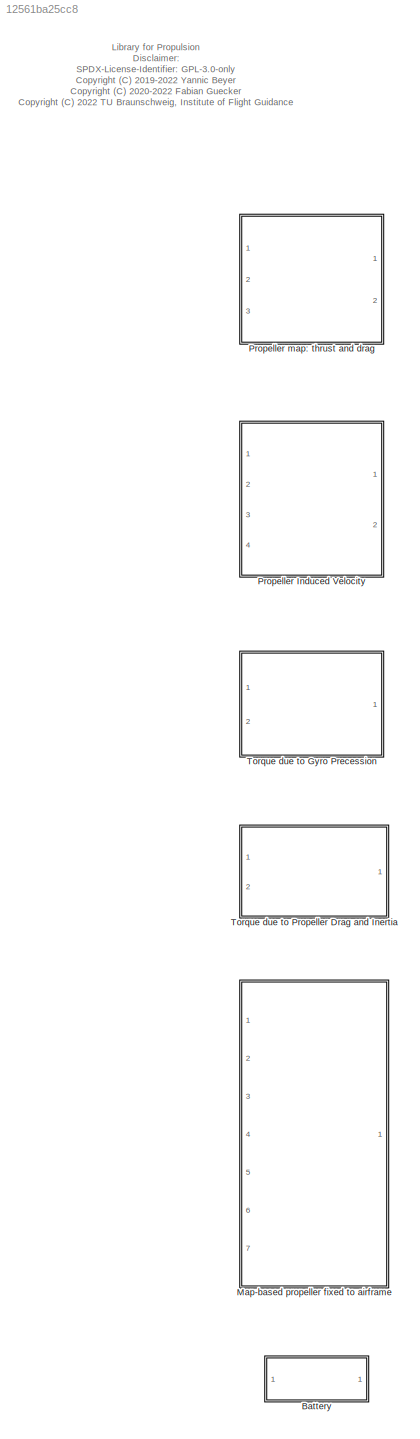
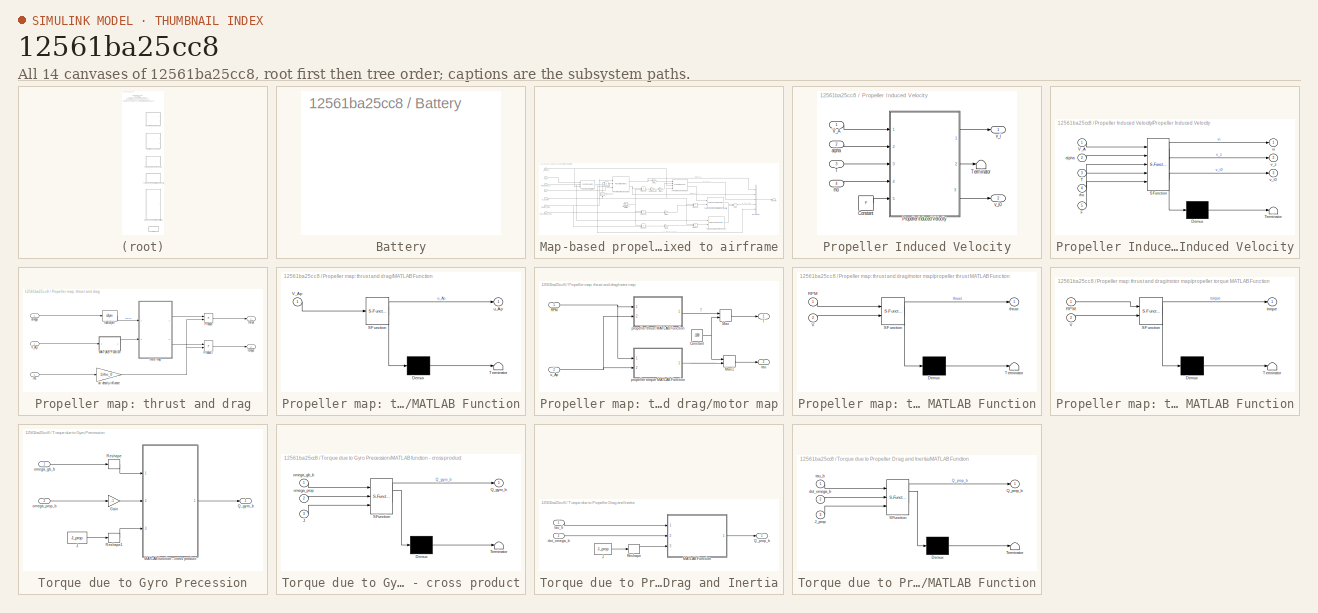
[diagram: thumbnail index - all 14 canvases of the model, root first then tree order]
MODEL slx_12561ba25cc8
KIND library
CONFIG AbsTol = auto
CONFIG EnableMultiTasking = off
CONFIG FixedStep = auto
CONFIG MaxStep = auto
CONFIG MinStep = auto
CONFIG RelTol = 1e-3
CONFIG SampleTimeConstraint = Unconstrained
CONFIG Solver = VariableStepAuto
CONFIG SolverName = VariableStepAuto
CONFIG StartTime = 0.0
CONFIG StopTime = 10.0
BLOCK [SubSystem] Battery
  OpenFcn = battery_lib
  Ports = []
  RequestExecContextInheritance = off
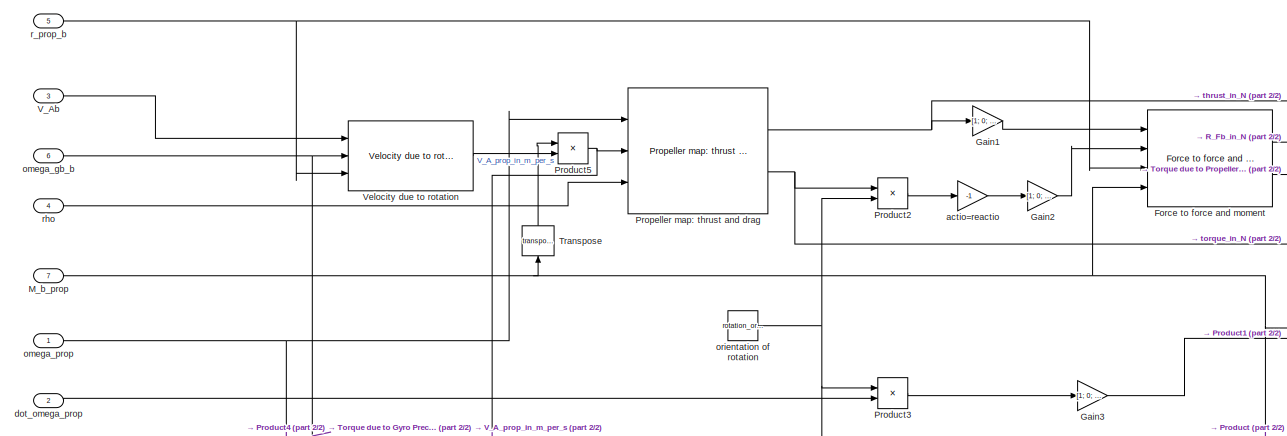
[diagram: Map-based propeller fixed to airframe - part 1/2, middle left region]
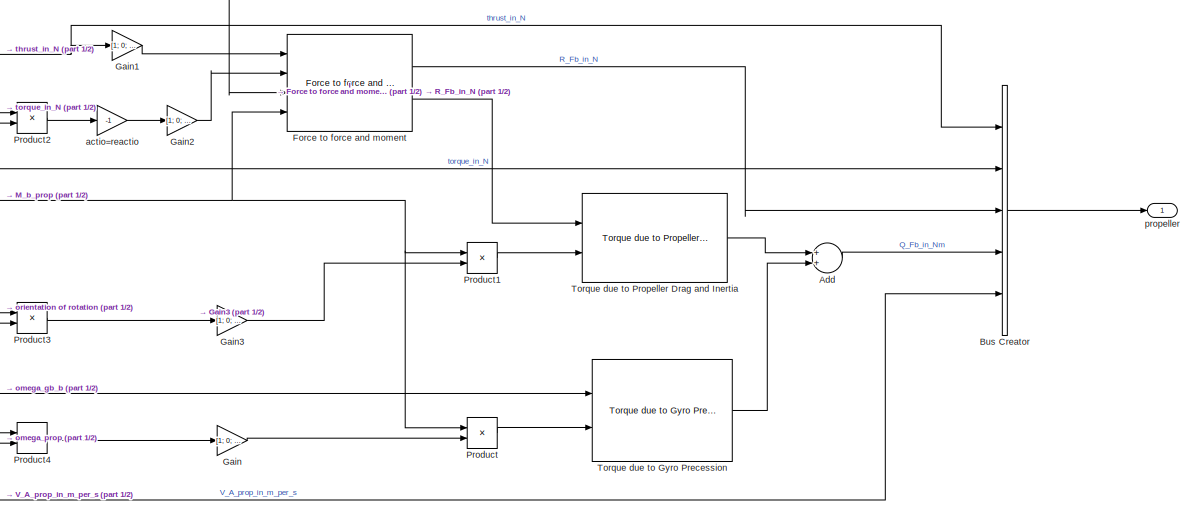
[diagram: Map-based propeller fixed to airframe - part 2/2, right side, full height]
BLOCK [SubSystem] Map-based propeller fixed to airframe
  Ports = [7, 1]
  RequestExecContextInheritance = off
BLOCK [Sum] Map-based propeller fixed to airframe/Add
  InputSameDT = off
  OutDataTypeStr = Inherit: Inherit via internal rule
  Ports = [2, 1]
  SaturateOnIntegerOverflow = off
BLOCK [BusCreator] Map-based propeller fixed to airframe/Bus Creator
  DisplayOption = bar
  InheritFromInputs = on
  Inputs = 5
  Ports = [5, 1]
BLOCK [Reference] Map-based propeller fixed to airframe/Force to force and moment  REF=axes_transformation_lib/Force to force and moment  (lib defined in slx_69e2413c78c0)
  Ports = [4, 2]
  SourceBlock = axes_transformation_lib/Force to force and moment
  SourceProductName = LADAC
  SourceType = SubSystem
BLOCK [Gain] Map-based propeller fixed to airframe/Gain
  Gain = [1; 0; 0]
  OutDataTypeStr = Inherit: Inherit via internal rule
  ParamDataTypeStr = Inherit: Inherit via internal rule
  SaturateOnIntegerOverflow = off
BLOCK [Gain] Map-based propeller fixed to airframe/Gain1
  Gain = [1; 0; 0]
  OutDataTypeStr = Inherit: Inherit via internal rule
  ParamDataTypeStr = Inherit: Inherit via internal rule
  SaturateOnIntegerOverflow = off
BLOCK [Gain] Map-based propeller fixed to airframe/Gain2
  Gain = [1; 0; 0]
  OutDataTypeStr = Inherit: Inherit via internal rule
  ParamDataTypeStr = Inherit: Inherit via internal rule
  SaturateOnIntegerOverflow = off
BLOCK [Gain] Map-based propeller fixed to airframe/Gain3
  Gain = [1; 0; 0]
  OutDataTypeStr = Inherit: Inherit via internal rule
  ParamDataTypeStr = Inherit: Inherit via internal rule
  SaturateOnIntegerOverflow = off
BLOCK [Inport] Map-based propeller fixed to airframe/M_b_prop
  IconDisplay = Port number
  Port = 7
BLOCK [Product] Map-based propeller fixed to airframe/Product
  InputSameDT = off
  Multiplication = Matrix(*)
  OutDataTypeStr = Inherit: Inherit via internal rule
  Ports = [2, 1]
  RndMeth = Floor
  SaturateOnIntegerOverflow = off
BLOCK [Product] Map-based propeller fixed to airframe/Product1
  InputSameDT = off
  Multiplication = Matrix(*)
  OutDataTypeStr = Inherit: Inherit via internal rule
  Ports = [2, 1]
  RndMeth = Floor
  SaturateOnIntegerOverflow = off
BLOCK [Product] Map-based propeller fixed to airframe/Product2
  InputSameDT = off
  OutDataTypeStr = Inherit: Inherit via internal rule
  Ports = [2, 1]
  RndMeth = Floor
  SaturateOnIntegerOverflow = off
BLOCK [Product] Map-based propeller fixed to airframe/Product3
  InputSameDT = off
  OutDataTypeStr = Inherit: Inherit via internal rule
  Ports = [2, 1]
  RndMeth = Floor
  SaturateOnIntegerOverflow = off
BLOCK [Product] Map-based propeller fixed to airframe/Product4
  InputSameDT = off
  OutDataTypeStr = Inherit: Inherit via internal rule
  Ports = [2, 1]
  RndMeth = Floor
  SaturateOnIntegerOverflow = off
BLOCK [Product] Map-based propeller fixed to airframe/Product5
  InputSameDT = off
  Multiplication = Matrix(*)
  OutDataTypeStr = Inherit: Inherit via internal rule
  Ports = [2, 1]
  RndMeth = Floor
  SaturateOnIntegerOverflow = off
BLOCK [Reference] Map-based propeller fixed to airframe/Propeller map: thrust and drag  REF=$bdroot/Propeller map: thrust and drag
  Ports = [3, 2]
  SourceBlock = $bdroot/Propeller map: thrust and drag
BLOCK [Reference] Map-based propeller fixed to airframe/Torque due to Gyro Precession  REF=$bdroot/Torque due to Gyro Precession
  Ports = [2, 1]
  SourceBlock = $bdroot/Torque due to Gyro Precession
BLOCK [Reference] Map-based propeller fixed to airframe/Torque due to Propeller Drag and Inertia  REF=$bdroot/Torque due to Propeller Drag and Inertia
  Ports = [2, 1]
  SourceBlock = $bdroot/Torque due to Propeller Drag and Inertia
BLOCK [Math] Map-based propeller fixed to airframe/Transpose
  Operator = transpose
  Ports = [1, 1]
BLOCK [Inport] Map-based propeller fixed to airframe/V_Ab
  IconDisplay = Port number
  Port = 3
BLOCK [Reference] Map-based propeller fixed to airframe/Velocity due to rotation  REF=axes_transformation_lib/Velocity due to rotation  (lib defined in slx_69e2413c78c0)
  Ports = [3, 1]
  SourceBlock = axes_transformation_lib/Velocity due to rotation
  SourceProductName = LADAC
  SourceType = SubSystem
BLOCK [Gain] Map-based propeller fixed to airframe/actio=reactio
  Gain = -1
  OutDataTypeStr = Inherit: Inherit via internal rule
  ParamDataTypeStr = Inherit: Inherit via internal rule
  SaturateOnIntegerOverflow = off
BLOCK [Inport] Map-based propeller fixed to airframe/dot_omega_prop
  IconDisplay = Port number
  Port = 2
BLOCK [Inport] Map-based propeller fixed to airframe/omega_gb_b
  IconDisplay = Port number
  Port = 6
BLOCK [Inport] Map-based propeller fixed to airframe/omega_prop
  IconDisplay = Port number
BLOCK [Constant] Map-based propeller fixed to airframe/orientation of rotation
  Value = rotation_orientation
BLOCK [Outport] Map-based propeller fixed to airframe/propeller
  IconDisplay = Port number
BLOCK [Inport] Map-based propeller fixed to airframe/r_prop_b
  IconDisplay = Port number
  Port = 5
BLOCK [Inport] Map-based propeller fixed to airframe/rho
  IconDisplay = Port number
  Port = 4
BLOCK [SubSystem] Propeller Induced Velocity
  Ports = [4, 2]
  RequestExecContextInheritance = off
BLOCK [Constant] Propeller Induced Velocity/Constant
  Value = F
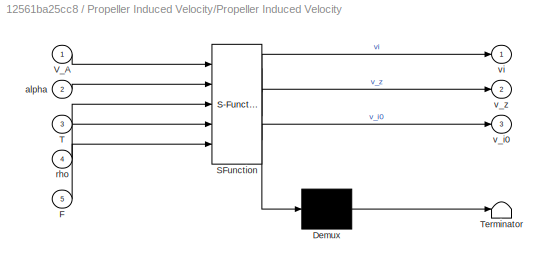
BLOCK [SubSystem] Propeller Induced Velocity/Propeller Induced Velocity
  ErrorFcn = Stateflow.Translate.translate
  PermitHierarchicalResolution = ExplicitOnly
  Ports = [5, 3]
  RequestExecContextInheritance = off
  SFBlockType = MATLAB Function
  TreatAsAtomicUnit = on
BLOCK [Demux] Propeller Induced Velocity/Propeller Induced Velocity/ Demux 
  Outputs = 1
  Ports = [1, 1]
BLOCK [S-Function] Propeller Induced Velocity/Propeller Induced Velocity/ SFunction 
  EnableBusSupport = off
  FunctionName = sf_sfun
  PortCounts = [5 4]
  Ports = [5, 4]
  SFcnIsStateOwnerBlock = off
  SFunctionDeploymentMode = off
  Tag = Stateflow S-Function propulsion_lib 2
BLOCK [Terminator] Propeller Induced Velocity/Propeller Induced Velocity/ Terminator 
BLOCK [Inport] Propeller Induced Velocity/Propeller Induced Velocity/F
  IconDisplay = Port number
  Port = 5
BLOCK [Inport] Propeller Induced Velocity/Propeller Induced Velocity/T
  IconDisplay = Port number
  Port = 3
BLOCK [Inport] Propeller Induced Velocity/Propeller Induced Velocity/V_A
  IconDisplay = Port number
BLOCK [Inport] Propeller Induced Velocity/Propeller Induced Velocity/alpha
  IconDisplay = Port number
  Port = 2
BLOCK [Inport] Propeller Induced Velocity/Propeller Induced Velocity/rho
  IconDisplay = Port number
  Port = 4
BLOCK [Outport] Propeller Induced Velocity/Propeller Induced Velocity/v_i0
  IconDisplay = Port number
  Port = 3
BLOCK [Outport] Propeller Induced Velocity/Propeller Induced Velocity/v_z
  IconDisplay = Port number
  Port = 2
BLOCK [Outport] Propeller Induced Velocity/Propeller Induced Velocity/vi
  IconDisplay = Port number
BLOCK [Inport] Propeller Induced Velocity/T
  IconDisplay = Port number
  Port = 3
BLOCK [Terminator] Propeller Induced Velocity/Terminator
BLOCK [Inport] Propeller Induced Velocity/V_A
  IconDisplay = Port number
BLOCK [Inport] Propeller Induced Velocity/alpha
  IconDisplay = Port number
  Port = 2
BLOCK [Inport] Propeller Induced Velocity/rho
  IconDisplay = Port number
  Port = 4
BLOCK [Outport] Propeller Induced Velocity/v_i
  IconDisplay = Port number
BLOCK [Outport] Propeller Induced Velocity/v_i0
  IconDisplay = Port number
  Port = 2
BLOCK [SubSystem] Propeller map: thrust and drag
  Ports = [3, 2]
  RequestExecContextInheritance = off
BLOCK [SubSystem] Propeller map: thrust and drag/MATLAB Function
  ErrorFcn = Stateflow.Translate.translate
  PermitHierarchicalResolution = ExplicitOnly
  Ports = [1, 1]
  RequestExecContextInheritance = off
  SFBlockType = MATLAB Function
  TreatAsAtomicUnit = on
BLOCK [Demux] Propeller map: thrust and drag/MATLAB Function/ Demux 
  Outputs = 1
  Ports = [1, 1]
BLOCK [S-Function] Propeller map: thrust and drag/MATLAB Function/ SFunction 
  EnableBusSupport = off
  FunctionName = sf_sfun
  PortCounts = [1 2]
  Ports = [1, 2]
  SFcnIsStateOwnerBlock = off
  SFunctionDeploymentMode = off
  Tag = Stateflow S-Function propulsion_lib 1
BLOCK [Terminator] Propeller map: thrust and drag/MATLAB Function/ Terminator 
BLOCK [Inport] Propeller map: thrust and drag/MATLAB Function/V_Ap
  IconDisplay = Port number
BLOCK [Outport] Propeller map: thrust and drag/MATLAB Function/u_Ap
  IconDisplay = Port number
BLOCK [Product] Propeller map: thrust and drag/Product
  InputSameDT = off
  OutDataTypeStr = Inherit: Inherit via internal rule
  Ports = [2, 1]
  RndMeth = Floor
  SaturateOnIntegerOverflow = off
BLOCK [Product] Propeller map: thrust and drag/Product7
  InputSameDT = off
  OutDataTypeStr = Inherit: Inherit via internal rule
  Ports = [2, 1]
  RndMeth = Floor
  SaturateOnIntegerOverflow = off
BLOCK [Inport] Propeller map: thrust and drag/V_Ap 
  IconDisplay = Port number
  Port = 2
BLOCK [Gain] Propeller map: thrust and drag/air density influence
  Gain = 1/rho_0
  OutDataTypeStr = Inherit: Inherit via internal rule
  ParamDataTypeStr = Inherit: Inherit via internal rule
  SaturateOnIntegerOverflow = off
BLOCK [SubSystem] Propeller map: thrust and drag/motor map
  Ports = [2, 2]
  RequestExecContextInheritance = off
BLOCK [Constant] Propeller map: thrust and drag/motor map/Constant
  Value = -1000
BLOCK [MinMax] Propeller map: thrust and drag/motor map/Max
  Function = max
  InputSameDT = off
  Inputs = 2
  Ports = [2, 1]
  SaturateOnIntegerOverflow = off
BLOCK [MinMax] Propeller map: thrust and drag/motor map/Max1
  Function = max
  InputSameDT = off
  Inputs = 2
  Ports = [2, 1]
  SaturateOnIntegerOverflow = off
BLOCK [Inport] Propeller map: thrust and drag/motor map/RPM
  IconDisplay = Port number
BLOCK [Outport] Propeller map: thrust and drag/motor map/T
  IconDisplay = Port number
BLOCK [SubSystem] Propeller map: thrust and drag/motor map/propeller thrust MATLAB Function
  ErrorFcn = Stateflow.Translate.translate
  PermitHierarchicalResolution = ExplicitOnly
  Ports = [2, 1]
  RequestExecContextInheritance = off
  SFBlockType = MATLAB Function
  TreatAsAtomicUnit = on
BLOCK [Demux] Propeller map: thrust and drag/motor map/propeller thrust MATLAB Function/ Demux 
  Outputs = 1
  Ports = [1, 1]
BLOCK [S-Function] Propeller map: thrust and drag/motor map/propeller thrust MATLAB Function/ SFunction 
  EnableBusSupport = off
  FunctionName = sf_sfun
  Parameters = prop_map_fit
  PortCounts = [2 2]
  Ports = [2, 2]
  SFcnIsStateOwnerBlock = off
  SFunctionDeploymentMode = off
  Tag = Stateflow S-Function propulsion_lib 4
BLOCK [Terminator] Propeller map: thrust and drag/motor map/propeller thrust MATLAB Function/ Terminator 
BLOCK [Inport] Propeller map: thrust and drag/motor map/propeller thrust MATLAB Function/RPM
  IconDisplay = Port number
BLOCK [Inport] Propeller map: thrust and drag/motor map/propeller thrust MATLAB Function/V
  IconDisplay = Port number
  Port = 2
BLOCK [Outport] Propeller map: thrust and drag/motor map/propeller thrust MATLAB Function/thrust
  IconDisplay = Port number
BLOCK [SubSystem] Propeller map: thrust and drag/motor map/propeller torque MATLAB Function
  ErrorFcn = Stateflow.Translate.translate
  PermitHierarchicalResolution = ExplicitOnly
  Ports = [2, 1]
  RequestExecContextInheritance = off
  SFBlockType = MATLAB Function
  TreatAsAtomicUnit = on
BLOCK [Demux] Propeller map: thrust and drag/motor map/propeller torque MATLAB Function/ Demux 
  Outputs = 1
  Ports = [1, 1]
BLOCK [S-Function] Propeller map: thrust and drag/motor map/propeller torque MATLAB Function/ SFunction 
  EnableBusSupport = off
  FunctionName = sf_sfun
  Parameters = prop_map_fit
  PortCounts = [2 2]
  Ports = [2, 2]
  SFcnIsStateOwnerBlock = off
  SFunctionDeploymentMode = off
  Tag = Stateflow S-Function propulsion_lib 5
BLOCK [Terminator] Propeller map: thrust and drag/motor map/propeller torque MATLAB Function/ Terminator 
BLOCK [Inport] Propeller map: thrust and drag/motor map/propeller torque MATLAB Function/RPM
  IconDisplay = Port number
BLOCK [Inport] Propeller map: thrust and drag/motor map/propeller torque MATLAB Function/V
  IconDisplay = Port number
  Port = 2
BLOCK [Outport] Propeller map: thrust and drag/motor map/propeller torque MATLAB Function/torque
  IconDisplay = Port number
BLOCK [Outport] Propeller map: thrust and drag/motor map/tau
  IconDisplay = Port number
  Port = 2
BLOCK [Inport] Propeller map: thrust and drag/motor map/u_Ap
  IconDisplay = Port number
  Port = 2
BLOCK [Inport] Propeller map: thrust and drag/omega
  IconDisplay = Port number
BLOCK [Reference] Propeller map: thrust and drag/rad//s2rpm  REF=unit_conversions_lib/rad//s2rpm  (lib defined in slx_ae2855d4d91e)
  Ports = [1, 1]
  SourceBlock = unit_conversions_lib/rad//s2rpm
  SourceProductName = LADAC
BLOCK [Inport] Propeller map: thrust and drag/rho
  IconDisplay = Port number
  Port = 3
BLOCK [Outport] Propeller map: thrust and drag/thrust
  IconDisplay = Port number
BLOCK [Outport] Propeller map: thrust and drag/torque
  IconDisplay = Port number
  Port = 2
BLOCK [SubSystem] Torque due to Gyro Precession
  Ports = [2, 1]
  RequestExecContextInheritance = off
BLOCK [Gain] Torque due to Gyro Precession/Gain
  Gain = -1
  OutDataTypeStr = Inherit: Inherit via internal rule
  ParamDataTypeStr = Inherit: Inherit via internal rule
  SaturateOnIntegerOverflow = off
BLOCK [Constant] Torque due to Gyro Precession/J
  Value = J_prop
BLOCK [SubSystem] Torque due to Gyro Precession/MATLAB function - cross product
  ErrorFcn = Stateflow.Translate.translate
  PermitHierarchicalResolution = ExplicitOnly
  Ports = [3, 1]
  RequestExecContextInheritance = off
  SFBlockType = MATLAB Function
  TreatAsAtomicUnit = on
BLOCK [Demux] Torque due to Gyro Precession/MATLAB function - cross product/ Demux 
  Outputs = 1
  Ports = [1, 1]
BLOCK [S-Function] Torque due to Gyro Precession/MATLAB function - cross product/ SFunction 
  EnableBusSupport = off
  FunctionName = sf_sfun
  PortCounts = [3 2]
  Ports = [3, 2]
  SFcnIsStateOwnerBlock = off
  SFunctionDeploymentMode = off
  Tag = Stateflow S-Function propulsion_lib 6
BLOCK [Terminator] Torque due to Gyro Precession/MATLAB function - cross product/ Terminator 
BLOCK [Inport] Torque due to Gyro Precession/MATLAB function - cross product/J
  IconDisplay = Port number
  Port = 3
BLOCK [Outport] Torque due to Gyro Precession/MATLAB function - cross product/Q_gyro_b
  IconDisplay = Port number
BLOCK [Inport] Torque due to Gyro Precession/MATLAB function - cross product/omega_gb_b
  IconDisplay = Port number
BLOCK [Inport] Torque due to Gyro Precession/MATLAB function - cross product/omega_prop
  IconDisplay = Port number
  Port = 2
BLOCK [Outport] Torque due to Gyro Precession/Q_gyro_b
  IconDisplay = Port number
BLOCK [Reshape] Torque due to Gyro Precession/Reshape
  OutputDimensionality = Column vector (2-D)
  Ports = [1, 1]
BLOCK [Reshape] Torque due to Gyro Precession/Reshape1
  OutputDimensionality = Row vector (2-D)
  Ports = [1, 1]
BLOCK [Inport] Torque due to Gyro Precession/omega_gb_b
  IconDisplay = Port number
BLOCK [Inport] Torque due to Gyro Precession/omega_prop_b
  IconDisplay = Port number
  Port = 2
BLOCK [SubSystem] Torque due to Propeller Drag and Inertia
  Ports = [2, 1]
  RequestExecContextInheritance = off
BLOCK [Constant] Torque due to Propeller Drag and Inertia/J
  Value = J_prop
BLOCK [SubSystem] Torque due to Propeller Drag and Inertia/MATLAB Function
  ErrorFcn = Stateflow.Translate.translate
  PermitHierarchicalResolution = ExplicitOnly
  Ports = [3, 1]
  RequestExecContextInheritance = off
  SFBlockType = MATLAB Function
  TreatAsAtomicUnit = on
BLOCK [Demux] Torque due to Propeller Drag and Inertia/MATLAB Function/ Demux 
  Outputs = 1
  Ports = [1, 1]
BLOCK [S-Function] Torque due to Propeller Drag and Inertia/MATLAB Function/ SFunction 
  EnableBusSupport = off
  FunctionName = sf_sfun
  PortCounts = [3 2]
  Ports = [3, 2]
  SFcnIsStateOwnerBlock = off
  SFunctionDeploymentMode = off
  Tag = Stateflow S-Function propulsion_lib 3
BLOCK [Terminator] Torque due to Propeller Drag and Inertia/MATLAB Function/ Terminator 
BLOCK [Inport] Torque due to Propeller Drag and Inertia/MATLAB Function/J_prop
  IconDisplay = Port number
  Port = 3
BLOCK [Outport] Torque due to Propeller Drag and Inertia/MATLAB Function/Q_prop_b
  IconDisplay = Port number
BLOCK [Inport] Torque due to Propeller Drag and Inertia/MATLAB Function/dot_omega_b
  IconDisplay = Port number
  Port = 2
BLOCK [Inport] Torque due to Propeller Drag and Inertia/MATLAB Function/tau_b
  IconDisplay = Port number
BLOCK [Outport] Torque due to Propeller Drag and Inertia/Q_prop_b
  IconDisplay = Port number
BLOCK [Reshape] Torque due to Propeller Drag and Inertia/Reshape
  OutputDimensionality = Row vector (2-D)
  Ports = [1, 1]
BLOCK [Inport] Torque due to Propeller Drag and Inertia/dot_omega_b
  IconDisplay = Port number
  Port = 2
BLOCK [Inport] Torque due to Propeller Drag and Inertia/tau_b
  IconDisplay = Port number
ANNOTATION (root): Library for Propulsion Disclaimer: SPDX-License-Identifier: GPL-3.0-only <copyright redacted>
LINE Map-based propeller fixed to airframe/Add:1 -> Map-based propeller fixed to airframe/Bus Creator:4
LINE Map-based propeller fixed to airframe/Bus Creator:1 -> Map-based propeller fixed to airframe/propeller:1
LINE Map-based propeller fixed to airframe/Force to force and moment:1 -> Map-based propeller fixed to airframe/Bus Creator:3
LINE Map-based propeller fixed to airframe/Force to force and moment:2 -> Map-based propeller fixed to airframe/Torque due to Propeller Drag and Inertia:1
LINE Map-based propeller fixed to airframe/Gain1:1 -> Map-based propeller fixed to airframe/Force to force and moment:1
LINE Map-based propeller fixed to airframe/Gain2:1 -> Map-based propeller fixed to airframe/Force to force and moment:2
LINE Map-based propeller fixed to airframe/Gain3:1 -> Map-based propeller fixed to airframe/Product1:2
LINE Map-based propeller fixed to airframe/Gain:1 -> Map-based propeller fixed to airframe/Product:2
NET Map-based propeller fixed to airframe/M_b_prop:1 -> Map-based propeller fixed to airframe/Force to force and moment:4, Map-based propeller fixed to airframe/Product1:1, Map-based propeller fixed to airframe/Product:1, Map-based propeller fixed to airframe/Transpose:1
LINE Map-based propeller fixed to airframe/Product1:1 -> Map-based propeller fixed to airframe/Torque due to Propeller Drag and Inertia:2
LINE Map-based propeller fixed to airframe/Product2:1 -> Map-based propeller fixed to airframe/actio=reactio:1
LINE Map-based propeller fixed to airframe/Product3:1 -> Map-based propeller fixed to airframe/Gain3:1
LINE Map-based propeller fixed to airframe/Product4:1 -> Map-based propeller fixed to airframe/Gain:1
NET Map-based propeller fixed to airframe/Product5:1 -> Map-based propeller fixed to airframe/Bus Creator:5, Map-based propeller fixed to airframe/Propeller map: thrust and drag:2
LINE Map-based propeller fixed to airframe/Product:1 -> Map-based propeller fixed to airframe/Torque due to Gyro Precession:2
NET Map-based propeller fixed to airframe/Propeller map: thrust and drag:1 -> Map-based propeller fixed to airframe/Bus Creator:1, Map-based propeller fixed to airframe/Gain1:1
NET Map-based propeller fixed to airframe/Propeller map: thrust and drag:2 -> Map-based propeller fixed to airframe/Bus Creator:2, Map-based propeller fixed to airframe/Product2:1
LINE Map-based propeller fixed to airframe/Torque due to Gyro Precession:1 -> Map-based propeller fixed to airframe/Add:2
LINE Map-based propeller fixed to airframe/Torque due to Propeller Drag and Inertia:1 -> Map-based propeller fixed to airframe/Add:1
LINE Map-based propeller fixed to airframe/Transpose:1 -> Map-based propeller fixed to airframe/Product5:1
LINE Map-based propeller fixed to airframe/V_Ab:1 -> Map-based propeller fixed to airframe/Velocity due to rotation:1
LINE Map-based propeller fixed to airframe/Velocity due to rotation:1 -> Map-based propeller fixed to airframe/Product5:2
LINE Map-based propeller fixed to airframe/actio=reactio:1 -> Map-based propeller fixed to airframe/Gain2:1
LINE Map-based propeller fixed to airframe/dot_omega_prop:1 -> Map-based propeller fixed to airframe/Product3:2
NET Map-based propeller fixed to airframe/omega_gb_b:1 -> Map-based propeller fixed to airframe/Torque due to Gyro Precession:1, Map-based propeller fixed to airframe/Velocity due to rotation:2
NET Map-based propeller fixed to airframe/omega_prop:1 -> Map-based propeller fixed to airframe/Product4:2, Map-based propeller fixed to airframe/Propeller map: thrust and drag:1
NET Map-based propeller fixed to airframe/orientation of rotation:1 -> Map-based propeller fixed to airframe/Product2:2, Map-based propeller fixed to airframe/Product3:1, Map-based propeller fixed to airframe/Product4:1
NET Map-based propeller fixed to airframe/r_prop_b:1 -> Map-based propeller fixed to airframe/Force to force and moment:3, Map-based propeller fixed to airframe/Velocity due to rotation:3
LINE Map-based propeller fixed to airframe/rho:1 -> Map-based propeller fixed to airframe/Propeller map: thrust and drag:3
LINE Propeller Induced Velocity/Constant:1 -> Propeller Induced Velocity/Propeller Induced Velocity:5
LINE Propeller Induced Velocity/Propeller Induced Velocity:1 -> Propeller Induced Velocity/v_i:1
LINE Propeller Induced Velocity/Propeller Induced Velocity:2 -> Propeller Induced Velocity/Terminator:1
LINE Propeller Induced Velocity/Propeller Induced Velocity:3 -> Propeller Induced Velocity/v_i0:1
LINE Propeller Induced Velocity/T:1 -> Propeller Induced Velocity/Propeller Induced Velocity:3
LINE Propeller Induced Velocity/V_A:1 -> Propeller Induced Velocity/Propeller Induced Velocity:1
LINE Propeller Induced Velocity/alpha:1 -> Propeller Induced Velocity/Propeller Induced Velocity:2
LINE Propeller Induced Velocity/rho:1 -> Propeller Induced Velocity/Propeller Induced Velocity:4
LINE Propeller map: thrust and drag/MATLAB Function:1 -> Propeller map: thrust and drag/motor map:2
LINE Propeller map: thrust and drag/Product7:1 -> Propeller map: thrust and drag/torque:1
LINE Propeller map: thrust and drag/Product:1 -> Propeller map: thrust and drag/thrust:1
LINE Propeller map: thrust and drag/V_Ap :1 -> Propeller map: thrust and drag/MATLAB Function:1
NET Propeller map: thrust and drag/air density influence:1 -> Propeller map: thrust and drag/Product7:2, Propeller map: thrust and drag/Product:2
NET Propeller map: thrust and drag/motor map/Constant:1 -> Propeller map: thrust and drag/motor map/Max1:1, Propeller map: thrust and drag/motor map/Max:2
LINE Propeller map: thrust and drag/motor map/Max1:1 -> Propeller map: thrust and drag/motor map/tau:1
LINE Propeller map: thrust and drag/motor map/Max:1 -> Propeller map: thrust and drag/motor map/T:1
NET Propeller map: thrust and drag/motor map/RPM:1 -> Propeller map: thrust and drag/motor map/propeller thrust MATLAB Function:1, Propeller map: thrust and drag/motor map/propeller torque MATLAB Function:1
LINE Propeller map: thrust and drag/motor map/propeller thrust MATLAB Function:1 -> Propeller map: thrust and drag/motor map/Max:1
LINE Propeller map: thrust and drag/motor map/propeller torque MATLAB Function:1 -> Propeller map: thrust and drag/motor map/Max1:2
NET Propeller map: thrust and drag/motor map/u_Ap:1 -> Propeller map: thrust and drag/motor map/propeller thrust MATLAB Function:2, Propeller map: thrust and drag/motor map/propeller torque MATLAB Function:2
LINE Propeller map: thrust and drag/motor map:1 -> Propeller map: thrust and drag/Product:1
LINE Propeller map: thrust and drag/motor map:2 -> Propeller map: thrust and drag/Product7:1
LINE Propeller map: thrust and drag/omega:1 -> Propeller map: thrust and drag/rad//s2rpm:1
LINE Propeller map: thrust and drag/rad//s2rpm:1 -> Propeller map: thrust and drag/motor map:1
LINE Propeller map: thrust and drag/rho:1 -> Propeller map: thrust and drag/air density influence:1
LINE Torque due to Gyro Precession/Gain:1 -> Torque due to Gyro Precession/MATLAB function - cross product:2
LINE Torque due to Gyro Precession/J:1 -> Torque due to Gyro Precession/Reshape1:1
LINE Torque due to Gyro Precession/MATLAB function - cross product:1 -> Torque due to Gyro Precession/Q_gyro_b:1
LINE Torque due to Gyro Precession/Reshape1:1 -> Torque due to Gyro Precession/MATLAB function - cross product:3
LINE Torque due to Gyro Precession/Reshape:1 -> Torque due to Gyro Precession/MATLAB function - cross product:1
LINE Torque due to Gyro Precession/omega_gb_b:1 -> Torque due to Gyro Precession/Reshape:1
LINE Torque due to Gyro Precession/omega_prop_b:1 -> Torque due to Gyro Precession/Gain:1
LINE Torque due to Propeller Drag and Inertia/J:1 -> Torque due to Propeller Drag and Inertia/Reshape:1
LINE Torque due to Propeller Drag and Inertia/MATLAB Function:1 -> Torque due to Propeller Drag and Inertia/Q_prop_b:1
LINE Torque due to Propeller Drag and Inertia/Reshape:1 -> Torque due to Propeller Drag and Inertia/MATLAB Function:3
LINE Torque due to Propeller Drag and Inertia/dot_omega_b:1 -> Torque due to Propeller Drag and Inertia/MATLAB Function:2
LINE Torque due to Propeller Drag and Inertia/tau_b:1 -> Torque due to Propeller Drag and Inertia/MATLAB Function:1
note: NET lines group one-source signal fan-out (src -> all destinations, sorted); 1:1 wires keep LINE
CHART Propeller map: thrust and drag/MATLAB Function states=1 transitions=1
  STATE_LABEL 'eML_blk_kernel()'
  STATE_LABEL 'SCRIPT:\nfunction u_Ap = fcn(V_Ap)\n%#codegen\n\nu_Ap = V_Ap(1,:);\n'
CHART Propeller Induced Velocity/Propeller Induced Velocity states=1 transitions=1
  STATE_LABEL 'eML_blk_kernel()'
  STATE_LABEL 'SCRIPT:\nfunction [ vi, v_z, v_i0 ] = fcn( V_A, alpha, T, rho, F ) %#codegen\n    [ vi, v_z, v_i0 ] = propellerInducedVelocity( V_A, alpha, T, rho, F );\nend'
CHART Torque due to Propeller Drag and Inertia/MATLAB Function states=1 transitions=1
  STATE_LABEL 'eML_blk_kernel()'
  STATE_LABEL 'SCRIPT:\nfunction Q_prop_b = fcn( tau_b, dot_omega_b, J_prop )\n%#codegen\n\ninertia_moment = dot_omega_b .* repmat( J_prop, 3, 1 );\n\nQ_prop_b = sum( tau_b - inertia_moment, 2 );'
CHART Propeller map: thrust and drag/motor map/propeller thrust
MATLAB Function states=1 transitions=1
  STATE_LABEL 'eML_blk_kernel()'
  STATE_LABEL "SCRIPT:\nfunction thrust = propMapFitGetZ( RPM, V,  prop_map_fit)\nthrust = propMapFitGetZ( prop_map_fit, RPM, V, 'thrust' );\nend\n"
CHART Propeller map: thrust and drag/motor map/propeller torque
MATLAB Function states=1 transitions=1
  STATE_LABEL 'eML_blk_kernel()'
  STATE_LABEL "SCRIPT:\nfunction torque = propMapFitGetZ( RPM, V,  prop_map_fit)\ntorque = propMapFitGetZ( prop_map_fit, RPM, V, 'torque' );\nend\n"
CHART Torque due to Gyro Precession/MATLAB function - cross product states=1 transitions=1
  STATE_LABEL 'eML_blk_kernel()'
  STATE_LABEL 'SCRIPT:\nfunction Q_gyro_b  = fcn(omega_gb_b,omega_prop,J)\n%#codegen\n\n% matrix generation\nomega_gb_b = repmat( omega_gb_b, 1, length( omega_prop(1,:) ) );\n\n% impulse computation\nL_b_i = omega_prop .* repmat( J, 3, 1 );\n\n% cross product\nt1 = [2,3,1];\nt2 = [3,1,2];\n%C = A(:,t1).*B(:,t2)-A(:,t2).*B(:,t1);\nQ_gyro_b_i = omega_gb_b(t1,:).*L_b_i(t2,:)-omega_gb_b(t2,:).*L_b_i(t1,:);\n\n% sum of all propeller...<+33ch>'
